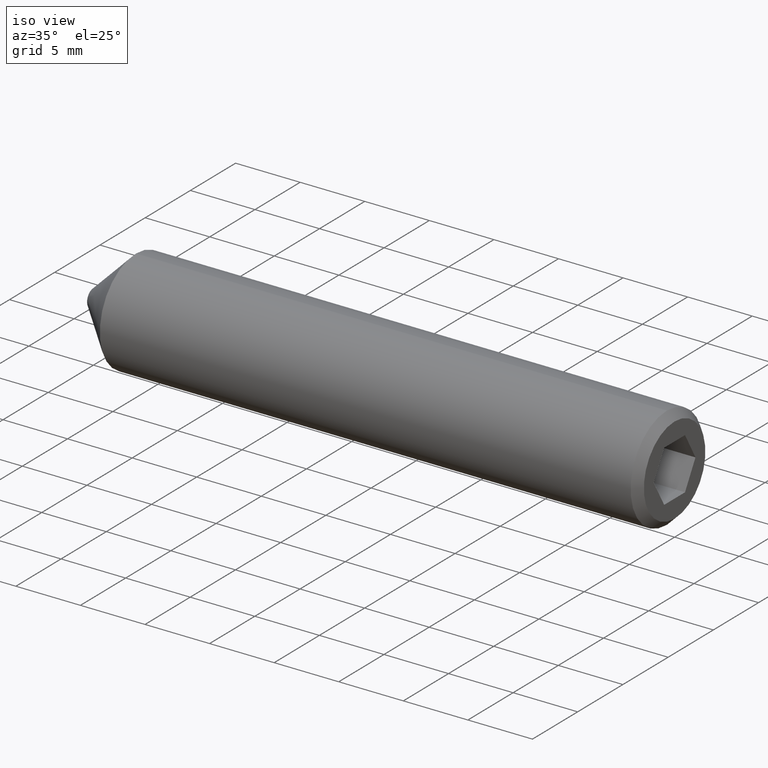
[diagram: clean part render]
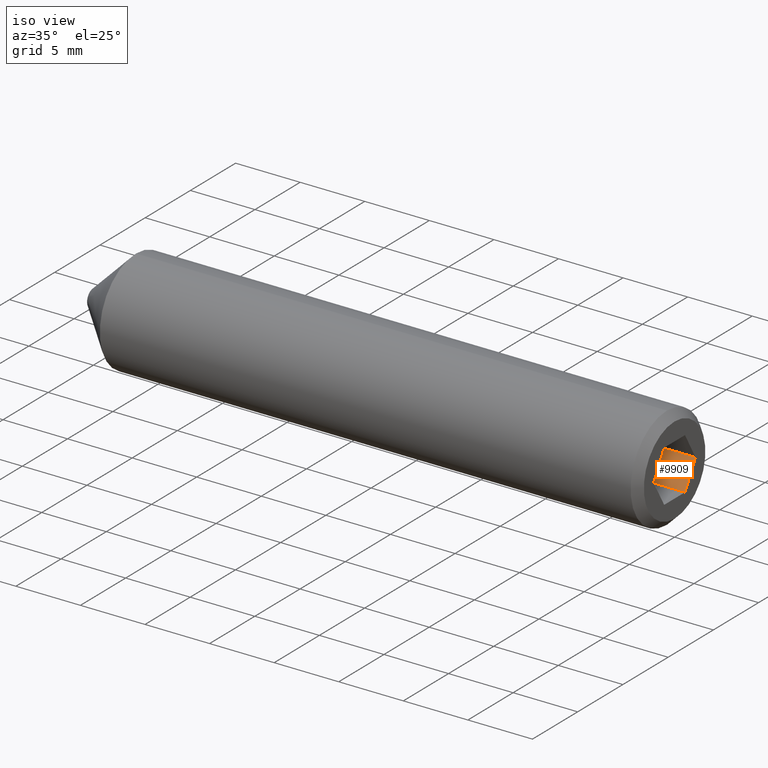
[diagram: same view with one face highlighted and labeled with its STEP entity id]
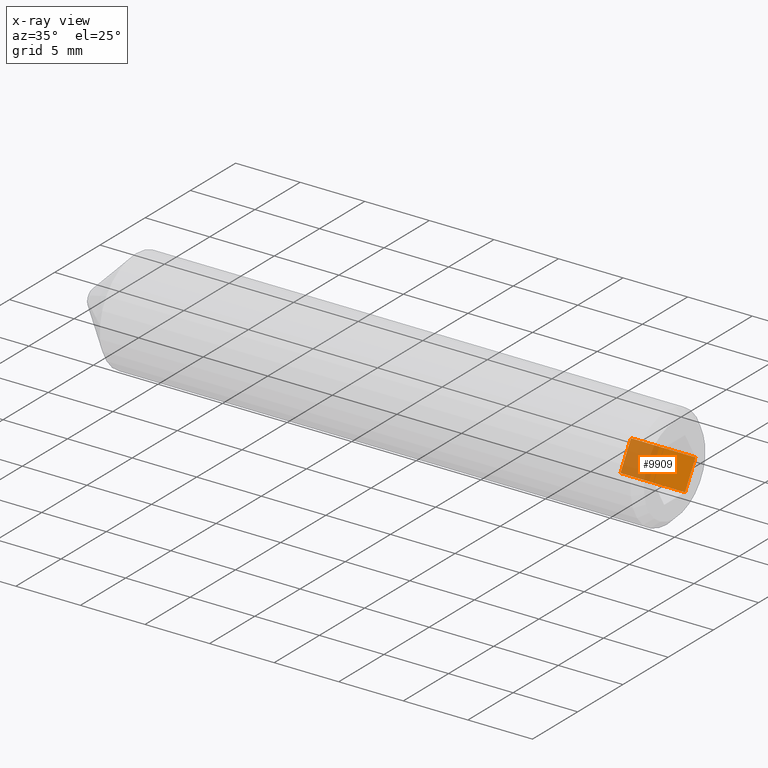
[diagram: x-ray of the same camera — body ghosted, the highlighted face saturated]
A machine part, iso view. The second image highlights one B-rep face of the part: STEP entity #9909.
The next image is the same camera in x-ray: the body ghosted, the highlighted face saturated — about 44% of this face is hidden behind the body in this view.
In plain terms, the highlighted planar face has unit normal (0, 0.866, -0.5).
Its self-contained STEP definition (entity closure, byte-faithful):
#629 = ORIENTED_EDGE ( 'NONE', *, *, #3039, .T. ) ;
#921 = VERTEX_POINT ( 'NONE', #5880 ) ;
#1101 = PLANE ( 'NONE',  #8401 ) ;
#1196 = VERTEX_POINT ( 'NONE', #9132 ) ;
#1583 = VERTEX_POINT ( 'NONE', #8084 ) ;
#1821 = ORIENTED_EDGE ( 'NONE', *, *, #5356, .T. ) ;
#1850 = VECTOR ( 'NONE', #3531, 1000.000000000000000 ) ;
#1986 = CARTESIAN_POINT ( 'NONE',  ( 45.00000000000000000, 1.154700538379252400, -1.999999999999999600 ) ) ;
#2495 = VECTOR ( 'NONE', #3791, 1000.000000000000000 ) ;
#3039 = EDGE_CURVE ( 'NONE', #3540, #1196, #9090, .T. ) ;
#3531 = DIRECTION ( 'NONE',  ( 1.000000000000000000, -0.0000000000000000000, 6.123031769111886300E-017 ) ) ;
#3540 = VERTEX_POINT ( 'NONE', #9450 ) ;
#3571 = CARTESIAN_POINT ( 'NONE',  ( 40.00000000000000000, 1.154700538379252400, -2.000000000000000000 ) ) ;
#3791 = DIRECTION ( 'NONE',  ( 1.000000000000000000, -0.0000000000000000000, 6.123031769111886300E-017 ) ) ;
#3848 = DIRECTION ( 'NONE',  ( 0.0000000000000000000, 0.4999999999999999400, 0.8660254037844386000 ) ) ;
#4672 = CARTESIAN_POINT ( 'NONE',  ( 40.00000000000000000, 2.309401076758503400, -1.190619091596349400E-015 ) ) ;
#4733 = DIRECTION ( 'NONE',  ( 3.061515884555943800E-017, 0.8660254037844387100, -0.5000000000000001100 ) ) ;
#4889 = ORIENTED_EDGE ( 'NONE', *, *, #10919, .F. ) ;
#5028 = LINE ( 'NONE', #1986, #7333 ) ;
#5289 = EDGE_LOOP ( 'NONE', ( #1821, #4889, #11590, #629 ) ) ;
#5356 = EDGE_CURVE ( 'NONE', #1196, #1583, #5028, .T. ) ;
#5360 = VECTOR ( 'NONE', #7059, 1000.000000000000100 ) ;
#5880 = CARTESIAN_POINT ( 'NONE',  ( 40.00000000000000000, 2.309401076758503400, -1.190619091596349400E-015 ) ) ;
#5921 = EDGE_CURVE ( 'NONE', #3540, #921, #11129, .T. ) ;
#7059 = DIRECTION ( 'NONE',  ( 0.0000000000000000000, 0.4999999999999999400, 0.8660254037844386000 ) ) ;
#7333 = VECTOR ( 'NONE', #3848, 1000.000000000000100 ) ;
#8084 = CARTESIAN_POINT ( 'NONE',  ( 45.00000000000000000, 2.309401076758503400, -8.844675031407550400E-016 ) ) ;
#8401 = AXIS2_PLACEMENT_3D ( 'NONE', #8455, #4733, #11195 ) ;
#8455 = CARTESIAN_POINT ( 'NONE',  ( 40.00000000000000000, 1.154700538379252400, -2.000000000000000000 ) ) ;
#9090 = LINE ( 'NONE', #3571, #1850 ) ;
#9132 = CARTESIAN_POINT ( 'NONE',  ( 45.00000000000000000, 1.154700538379252400, -1.999999999999999600 ) ) ;
#9450 = CARTESIAN_POINT ( 'NONE',  ( 40.00000000000000000, 1.154700538379252400, -2.000000000000000000 ) ) ;
#9909 = ADVANCED_FACE ( 'NONE', ( #11863 ), #1101, .F. ) ;
#10608 = CARTESIAN_POINT ( 'NONE',  ( 40.00000000000000000, 1.154700538379252400, -2.000000000000000000 ) ) ;
#10919 = EDGE_CURVE ( 'NONE', #921, #1583, #11448, .T. ) ;
#11129 = LINE ( 'NONE', #10608, #5360 ) ;
#11195 = DIRECTION ( 'NONE',  ( 0.0000000000000000000, 0.5000000000000000000, 0.8660254037844386000 ) ) ;
#11448 = LINE ( 'NONE', #4672, #2495 ) ;
#11590 = ORIENTED_EDGE ( 'NONE', *, *, #5921, .F. ) ;
#11863 = FACE_OUTER_BOUND ( 'NONE', #5289, .T. ) ;